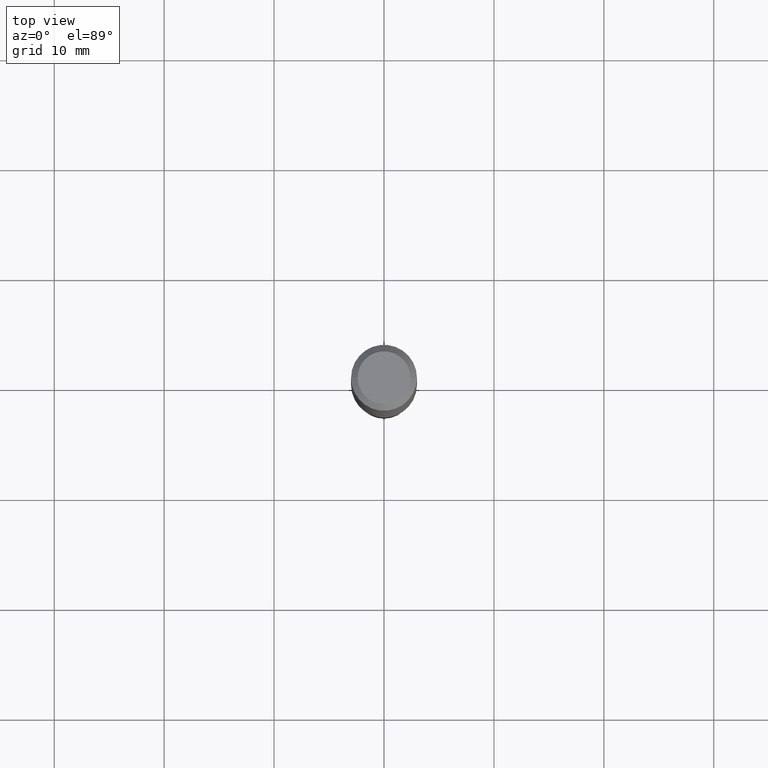
[diagram: clean part render]
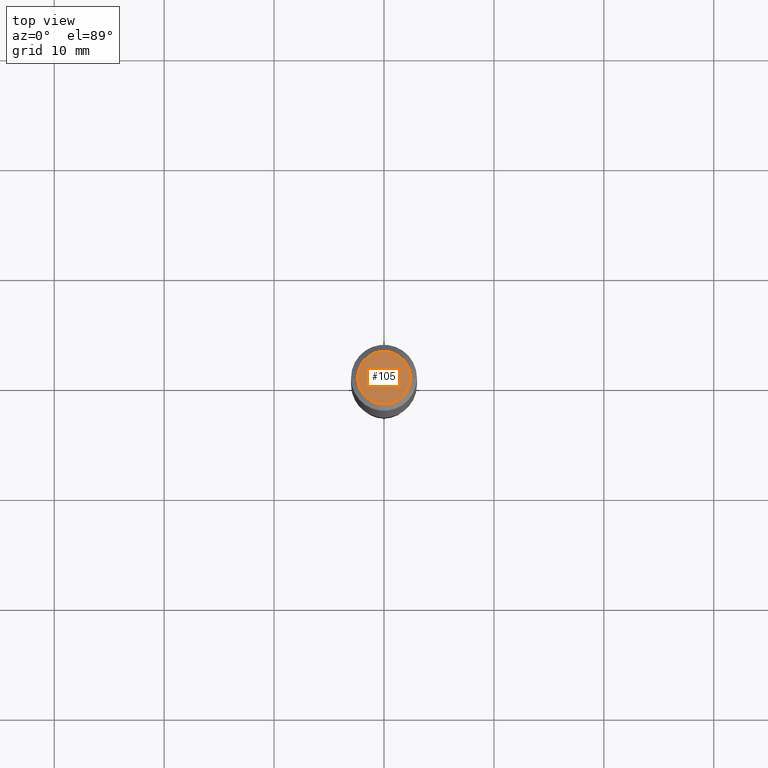
[diagram: same view with one face highlighted and labeled with its STEP entity id]
A machine part, top view. The second image highlights one B-rep face of the part: STEP entity #105.
In plain terms, the highlighted planar face has unit normal (0, -0, -1).
Its self-contained STEP definition (entity closure, byte-faithful):
#37 = CARTESIAN_POINT ( 'NONE',  ( 2.358133508849003952E-46, -3.366789680499277518E-32, -9.642868896486260050E-18 ) ) ;
#43 = CARTESIAN_POINT ( 'NONE',  ( 4.716267017698007905E-46, -6.733579360998555036E-32, -1.928573779297252010E-17 ) ) ;
#77 = CARTESIAN_POINT ( 'NONE',  ( 4.716267017698007905E-46, -6.733579360998555036E-32, -1.928573779297252010E-17 ) ) ;
#82 = CIRCLE ( 'NONE', #213, 0.09447999999999998066 ) ;
#83 = ORIENTED_EDGE ( 'NONE', *, *, #298, .T. ) ;
#105 = ADVANCED_FACE ( 'NONE', ( #178 ), #294, .F. ) ;
#112 = VERTEX_POINT ( 'NONE', #406 ) ;
#124 = EDGE_CURVE ( 'NONE', #354, #112, #427, .T. ) ;
#178 = FACE_OUTER_BOUND ( 'NONE', #324, .T. ) ;
#181 = AXIS2_PLACEMENT_3D ( 'NONE', #43, #310, #377 ) ;
#185 = CARTESIAN_POINT ( 'NONE',  ( 0.09447999999999998066, -7.704367267948738690E-16, -1.928573779296752193E-17 ) ) ;
#196 = DIRECTION ( 'NONE',  ( 1.000000000000000000, -6.982962677686267499E-15, 4.875432709231658792E-29 ) ) ;
#210 = DIRECTION ( 'NONE',  ( 2.438088387897960049E-29, -3.491481338843145188E-15, -1.000000000000000000 ) ) ;
#213 = AXIS2_PLACEMENT_3D ( 'NONE', #77, #228, #196 ) ;
#228 = DIRECTION ( 'NONE',  ( -2.445468806185136597E-29, 3.491481338843145583E-15, 1.000000000000000000 ) ) ;
#294 = PLANE ( 'NONE',  #422 ) ;
#298 = EDGE_CURVE ( 'NONE', #112, #354, #82, .T. ) ;
#310 = DIRECTION ( 'NONE',  ( -2.445468806185136597E-29, 3.491481338843145583E-15, 1.000000000000000000 ) ) ;
#324 = EDGE_LOOP ( 'NONE', ( #83, #489 ) ) ;
#354 = VERTEX_POINT ( 'NONE', #185 ) ;
#377 = DIRECTION ( 'NONE',  ( 1.000000000000000000, -6.982962677686267499E-15, 4.875432709231658792E-29 ) ) ;
#406 = CARTESIAN_POINT ( 'NONE',  ( -0.09447999999999998066, 7.009847083995354710E-16, -1.928573779297727792E-17 ) ) ;
#422 = AXIS2_PLACEMENT_3D ( 'NONE', #37, #210, #436 ) ;
#427 = CIRCLE ( 'NONE', #181, 0.09447999999999998066 ) ;
#436 = DIRECTION ( 'NONE',  ( -1.000000000000000000, 6.982962677686265922E-15, -4.876176775795935793E-29 ) ) ;
#489 = ORIENTED_EDGE ( 'NONE', *, *, #124, .T. ) ;